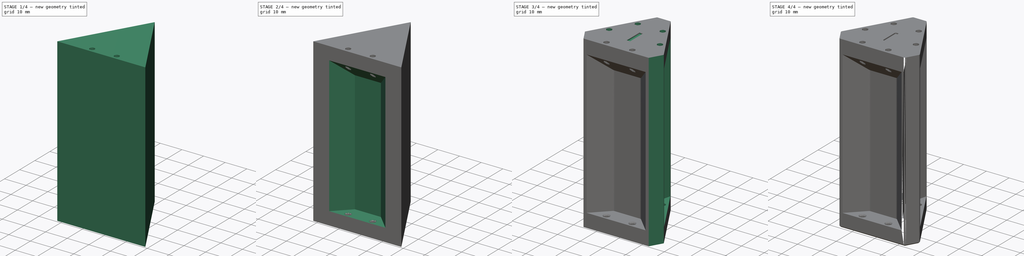
[diagram: build sequence overview — one tinted view per stage of 4, left to right]
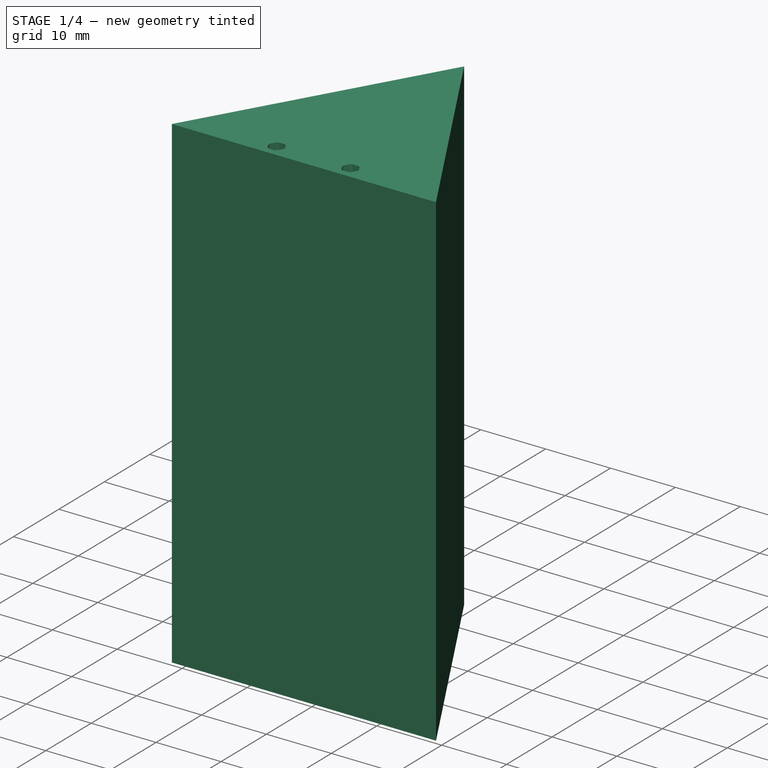
[diagram: stage 1 of 4 — iso view after this stage's code; geometry added in this stage tinted green]
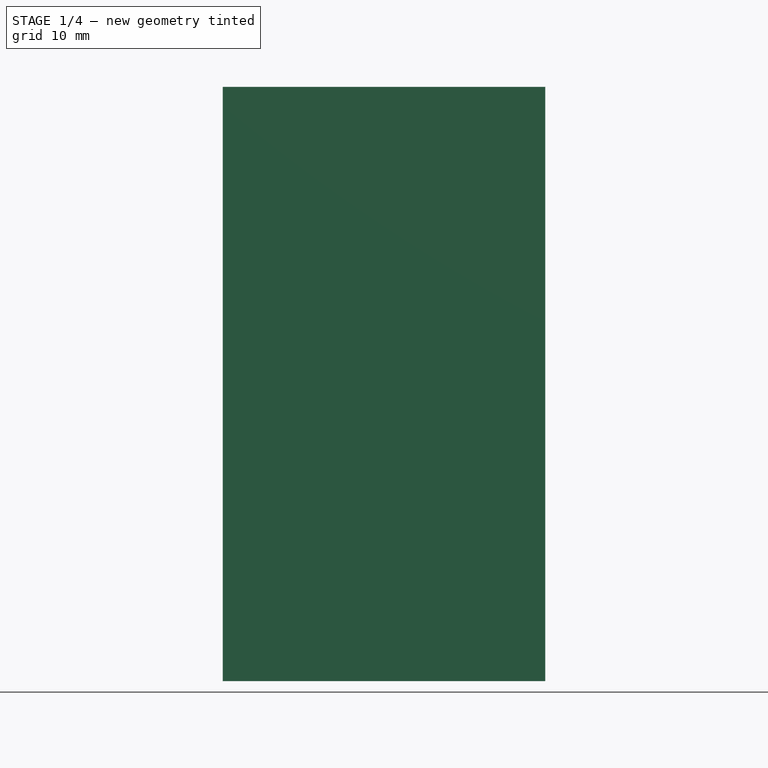
[diagram: stage 1 of 4 — front view after this stage's code; geometry added in this stage tinted green]
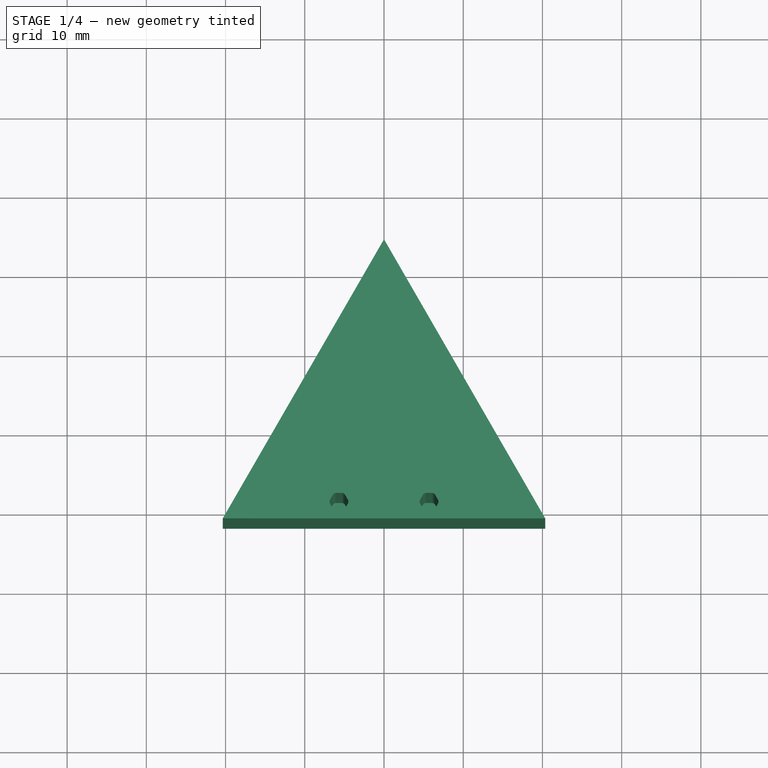
[diagram: stage 1 of 4 — top view after this stage's code; geometry added in this stage tinted green]
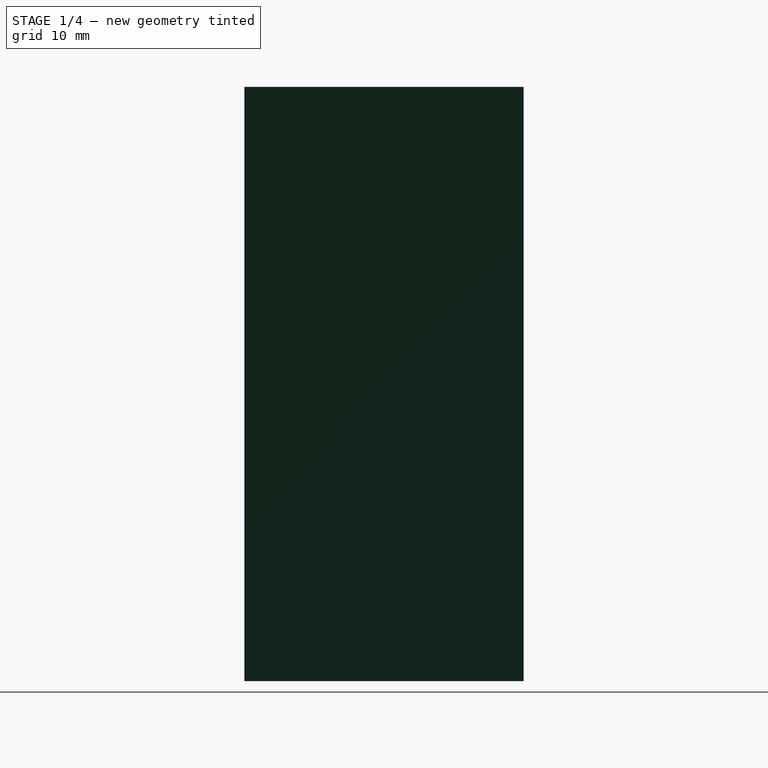
[diagram: stage 1 of 4 — right view after this stage's code; geometry added in this stage tinted green]
FCSTD DOCUMENT  (FreeCAD 1.1R41365 (Git))
Label: RodGrindingJig_A
License: All rights reserved
LicenseURL: https://en.wikipedia.org/wiki/All_rights_reserved
objects: Sketcher::SketchObject×5, PartDesign::Pocket×4, PartDesign::Fillet×4, PartDesign::Chamfer×3, App::Point×1, PartDesign::Pad×1, PartDesign::PolarPattern×1, PartDesign::Body×1
note: 49 computed .brp shape members not serialized (recipe doc carries the construction recipe); baked Part::Feature solids carry a one-line shape summary decoded from their .brp

FEATURE [App::Point] Origin001
  Role = Origin
FEATURE [Sketcher::SketchObject] Sketch
  ArcFitTolerance = 1e-06
  AttachmentSupport = -> [Origin]
  ExternalTypes = [0]
  FullyConstrained = true
  MakeInternals = false
  MapMode = 5
  sketch-geometry (4):
    g0: LineSegment StartX=0 StartY=23.5 StartZ=0 EndX=-20.3516 EndY=-11.75 EndZ=0
    g1: LineSegment StartX=-20.3516 StartY=-11.75 StartZ=0 EndX=20.3516 EndY=-11.75 EndZ=0
    g2: LineSegment StartX=20.3516 StartY=-11.75 StartZ=0 EndX=0 EndY=23.5 EndZ=0
    g3: Circle [constr] CenterX=0 CenterY=0 CenterZ=0 NormalX=0 NormalY=0 NormalZ=1 AngleXU=0 Radius=23.5
  constraints (11):
    c: Coincident(g0,g1)
    c: Coincident(g1,g2)
    c: Coincident(g2,g0)
    c: Equal(g0,g1)
    c: Equal(g0,g2)
    c: PointOnObject(g0,g3)
    c: PointOnObject(g1,g3)
    c: PointOnObject(g2,g3)
    c: Coincident(g3,g-1)
    c: PointOnObject(g2,g-2)
    c: Diameter(g3) = 47
FEATURE [PartDesign::Pad] Pad
  Direction = (0,0,1)
  Length = 75
  Length2 = 10
  Midplane = true
  Profile = -> Sketch
  ReferenceAxis = -> Sketch [N_Axis]
  Refine = true
  Suppressed = false
  Type = 0
FEATURE [Sketcher::SketchObject] Sketch003
  ArcFitTolerance = 1e-06
  AttachmentSupport = -> [Pad]
  ExternalTypes = [0,0]
  FullyConstrained = false
  MakeInternals = false
  MapMode = 5
  Placement = pos=(0,0,37.5) rot=(0,0,1;0rad)
  sketch-geometry (17):
    g0: LineSegment StartX=-5.05278 StartY=-10.7278 StartZ=0 EndX=-4.41769 EndY=-9.62778 EndZ=0
    g1: LineSegment StartX=-4.41769 StartY=-9.62778 StartZ=0 EndX=-5.05278 EndY=-8.52778 EndZ=0
    g2: LineSegment StartX=-5.05278 StartY=-8.52778 StartZ=0 EndX=-6.32295 EndY=-8.52778 EndZ=0
    g3: LineSegment StartX=-6.32295 StartY=-8.52778 StartZ=0 EndX=-6.95803 EndY=-9.62778 EndZ=0
    g4: LineSegment StartX=-6.95803 StartY=-9.62778 StartZ=0 EndX=-6.32295 EndY=-10.7278 EndZ=0
    g5: LineSegment StartX=-6.32295 StartY=-10.7278 StartZ=0 EndX=-5.05278 EndY=-10.7278 EndZ=0
    g6: Circle [constr] CenterX=-5.68786 CenterY=-9.62778 CenterZ=0 NormalX=0 NormalY=0 NormalZ=1 AngleXU=0 Radius=1.27017
    g7: LineSegment StartX=6.95803 StartY=-9.62778 StartZ=0 EndX=6.32295 EndY=-8.52778 EndZ=0
    g8: LineSegment StartX=6.32295 StartY=-8.52778 StartZ=0 EndX=5.05278 EndY=-8.52778 EndZ=0
    g9: LineSegment StartX=5.05278 StartY=-8.52778 StartZ=0 EndX=4.41769 EndY=-9.62778 EndZ=0
    g10: LineSegment StartX=4.41769 StartY=-9.62778 StartZ=0 EndX=5.05278 EndY=-10.7278 EndZ=0
    g11: LineSegment StartX=5.05278 StartY=-10.7278 StartZ=0 EndX=6.32295 EndY=-10.7278 EndZ=0
    g12: LineSegment StartX=6.32295 StartY=-10.7278 StartZ=0 EndX=6.95803 EndY=-9.62778 EndZ=0
    g13: Circle [constr] CenterX=5.68786 CenterY=-9.62778 CenterZ=0 NormalX=0 NormalY=0 NormalZ=1 AngleXU=0 Radius=1.27017
    g14: LineSegment [constr] StartX=-5.68786 StartY=-9.62778 StartZ=0 EndX=5.68786 EndY=-9.62778 EndZ=0
    g15: GeomPoint [constr] X=-9.8997e-12 Y=-9.62778 Z=0
    g16: LineSegment [constr] StartX=-1.8581e-12 StartY=-7.50555 StartZ=0 EndX=-1.7943e-11 EndY=-11.75 EndZ=0
  constraints (37):
    c: Coincident(g0,g1)
    c: Coincident(g1,g2)
    c: Coincident(g2,g3)
    c: Coincident(g3,g4)
    c: Coincident(g4,g5)
    c: Coincident(g5,g0)
    c: Equal(g0, g1-g5) x5
    c: PointOnObject(g0,g6)
    c: PointOnObject(g1,g6)
    c: PointOnObject(g2,g6)
    c: PointOnObject(g3,g6)
    c: PointOnObject(g4,g6)
    c: PointOnObject(g5,g6)
    c: Coincident(g7,g8)
    c: Coincident(g8,g9)
    c: Coincident(g9,g10)
    c: Coincident(g10,g11)
    c: Coincident(g11,g12)
    c: Coincident(g12,g7)
    c: Equal(g7, g8-g12) x5
    c: PointOnObject(g7,g13)
    c: PointOnObject(g8,g13)
    c: PointOnObject(g9,g13)
    c: PointOnObject(g10,g13)
    c: PointOnObject(g11,g13)
    c: PointOnObject(g12,g13)
    c: Coincident(g14,g6)
    c: Coincident(g14,g13)
    c: Horizontal(g14)
    c: Symmetric(g14,g14,g15)
    c: Horizontal(g2)
    c: Horizontal(g8)
    c: Equal(g6,g13)
    c: Distance(g5,g2) = 2.2
    c: Symmetric(g-3,g-3,g16)
    c: Symmetric(g-4,g-4,g16)
    c: Symmetric(g16,g16,g15)
FEATURE [PartDesign::Pocket] Pocket002  label="Hole_Rod"
  BaseFeature = -> Pad
  Direction = (0,0,-1)
  Length = 72.75
  Length2 = 5
  Profile = -> Sketch003
  ReferenceAxis = -> Sketch003 [N_Axis]
  Refine = true
  Suppressed = false
  Type = 0
FEATURE [PartDesign::Fillet] Fillet
  Base = -> Pocket002 [Edge39,Edge37,Edge25,Edge23,Edge22,Edge31,Edge35,Edge34,Edge41,Edge43,Edge27,Edge29]
  BaseFeature = -> Pocket002
  Radius = 0.5
  Refine = true
  SupportTransform = false
  Suppressed = false
  UseAllEdges = false
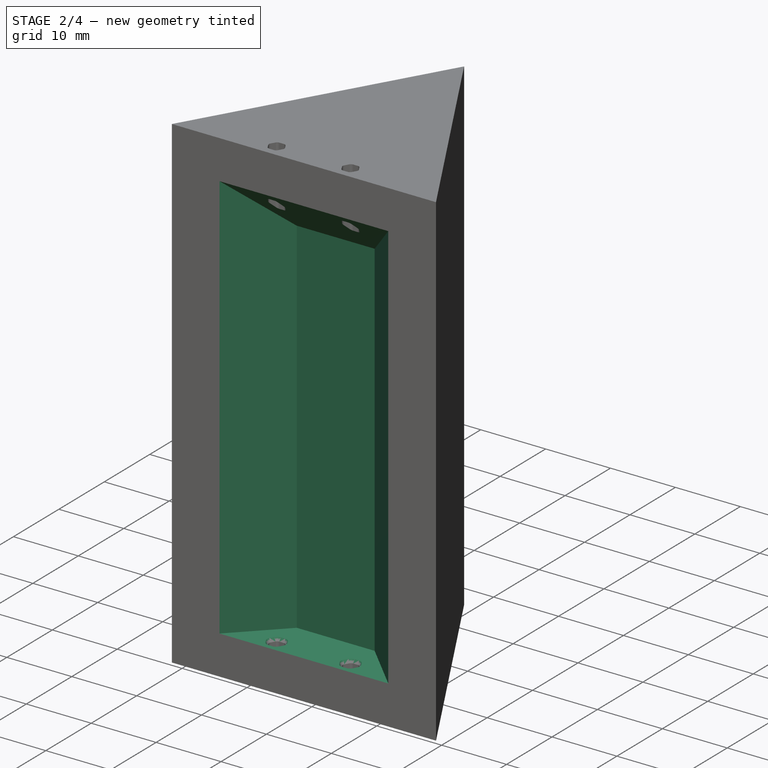
[diagram: stage 2 of 4 — iso view after this stage's code; geometry added in this stage tinted green]
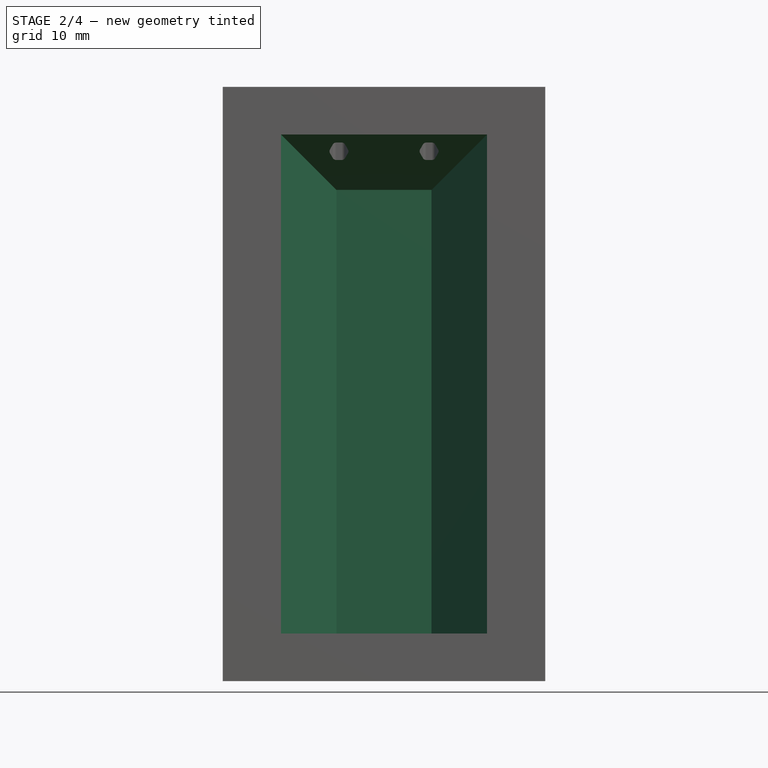
[diagram: stage 2 of 4 — front view after this stage's code; geometry added in this stage tinted green]
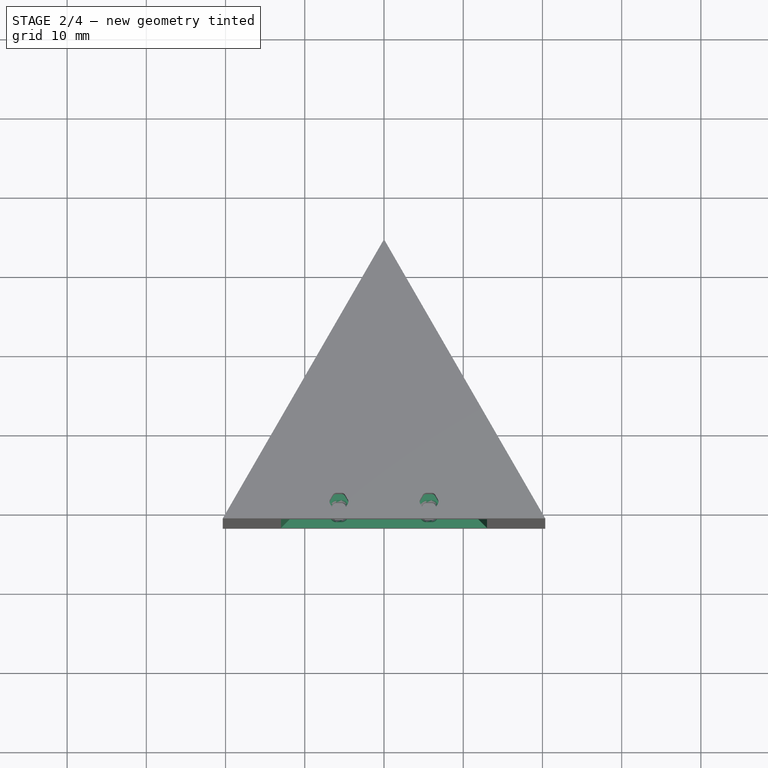
[diagram: stage 2 of 4 — top view after this stage's code; geometry added in this stage tinted green]
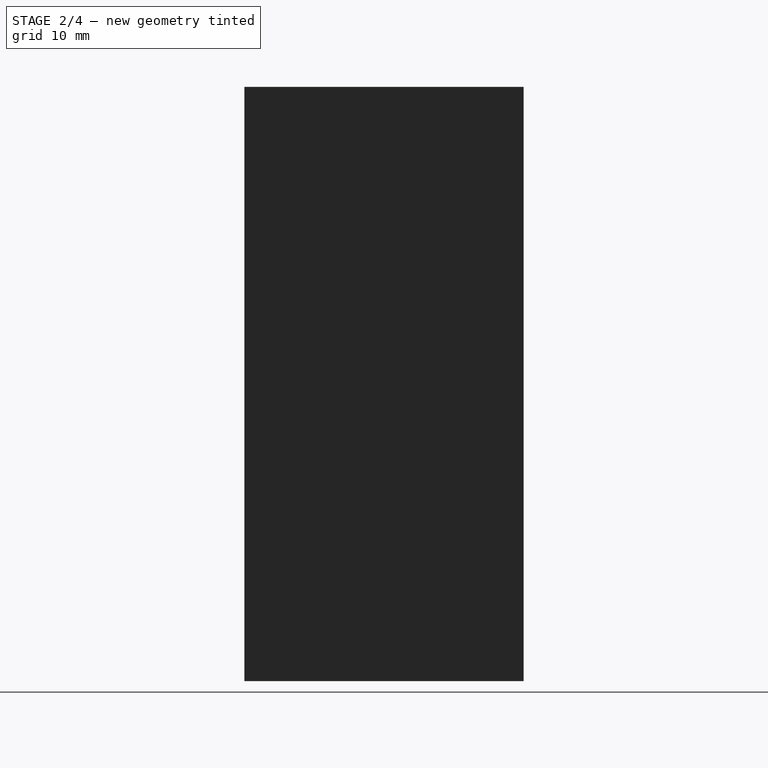
[diagram: stage 2 of 4 — right view after this stage's code; geometry added in this stage tinted green]
FEATURE [Sketcher::SketchObject] Sketch005
  ArcFitTolerance = 1e-06
  AttachmentSupport = -> [Fillet]
  ExternalGeometry = -> [Fillet]
  ExternalTypes = [0,0]
  FullyConstrained = true
  MakeInternals = false
  MapMode = 5
  Placement = pos=(-1.7941e-11,-11.75,0) rot=(1,0,0;1.5708rad)
  sketch-geometry (5):
    g0: LineSegment StartX=-13 StartY=-31.5 StartZ=0 EndX=13 EndY=-31.5 EndZ=0
    g1: LineSegment StartX=13 StartY=-31.5 StartZ=0 EndX=13 EndY=31.5 EndZ=0
    g2: LineSegment StartX=13 StartY=31.5 StartZ=0 EndX=-13 EndY=31.5 EndZ=0
    g3: LineSegment StartX=-13 StartY=31.5 StartZ=0 EndX=-13 EndY=-31.5 EndZ=0
    g4: GeomPoint [constr] X=0 Y=-2.9e-15 Z=0
  constraints (13):
    c: Coincident(g0,g1)
    c: Coincident(g1,g2)
    c: Coincident(g2,g3)
    c: Coincident(g3,g0)
    c: Horizontal(g0)
    c: Horizontal(g2)
    c: Vertical(g1)
    c: Vertical(g3)
    c: Symmetric(g2,g0,g4)
    c: PointOnObject(g4,g-2)
    c: Distance(g0,g0) = 26
    c: Distance(g-4,g0) = 6
    c: Distance(g-3,g2) = 6
FEATURE [PartDesign::Pocket] Pocket
  BaseFeature = -> Fillet
  Direction = (1.5269e-12,1,-2e-16)
  Length = 7
  Length2 = 5
  Profile = -> Sketch005
  ReferenceAxis = -> Sketch005 [N_Axis]
  Refine = true
  Suppressed = false
  TaperAngle = -45
  Type = 0
FEATURE [Sketcher::SketchObject] Sketch006
  ArcFitTolerance = 1e-06
  AttachmentSupport = -> [Origin]
  ExternalGeometry = -> [Pocket]
  ExternalTypes = [0,0,0,0]
  FullyConstrained = true
  MakeInternals = false
  MapMode = 5
FEATURE [PartDesign::Pocket] Pocket003
  BaseFeature = -> Pocket
  Direction = (0,0,-1)
  Length = 31.5
  Length2 = 5
  Profile = -> Sketch006
  ReferenceAxis = -> Sketch006 [N_Axis]
  Refine = true
  Suppressed = false
  Type = 0
FEATURE [PartDesign::Chamfer] Chamfer001
  Angle = 30
  Base = -> Pocket003 [Edge106,Edge104]
  BaseFeature = -> Pocket003
  ChamferType = 2
  FlipDirection = true
  Refine = true
  Size = 0.5
  Size2 = 1
  SupportTransform = false
  Suppressed = false
  UseAllEdges = false
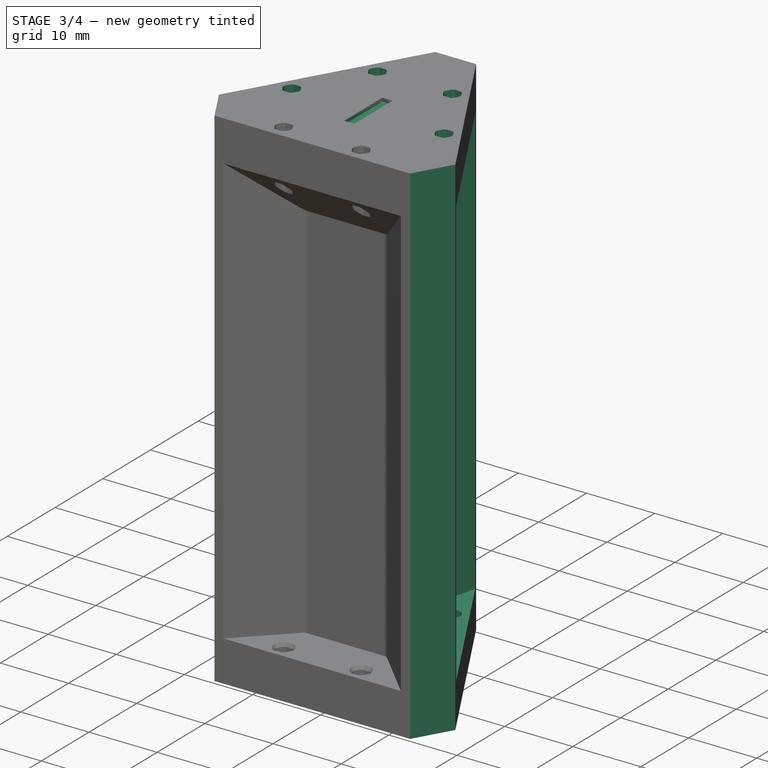
[diagram: stage 3 of 4 — iso view after this stage's code; geometry added in this stage tinted green]
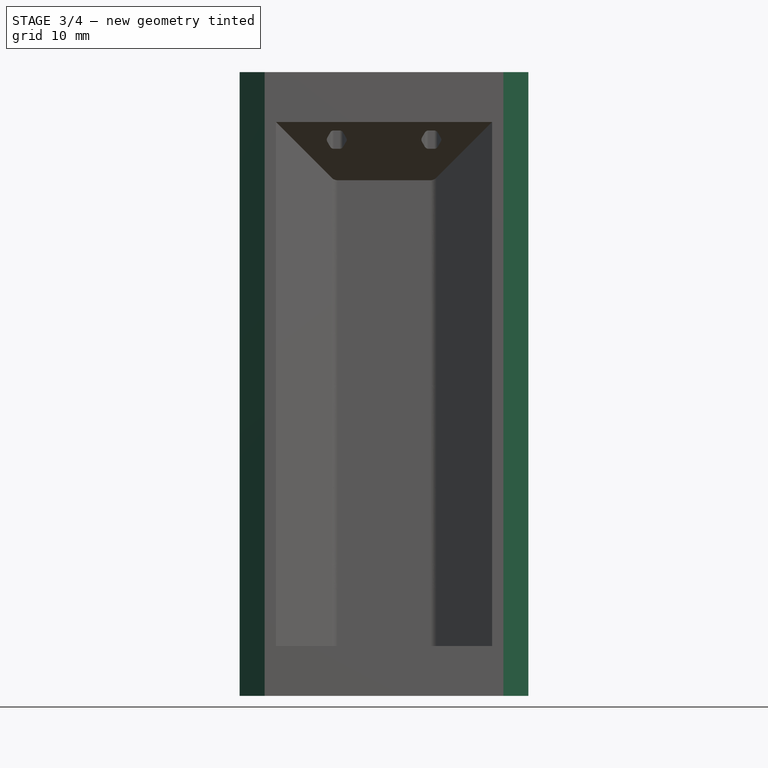
[diagram: stage 3 of 4 — front view after this stage's code; geometry added in this stage tinted green]
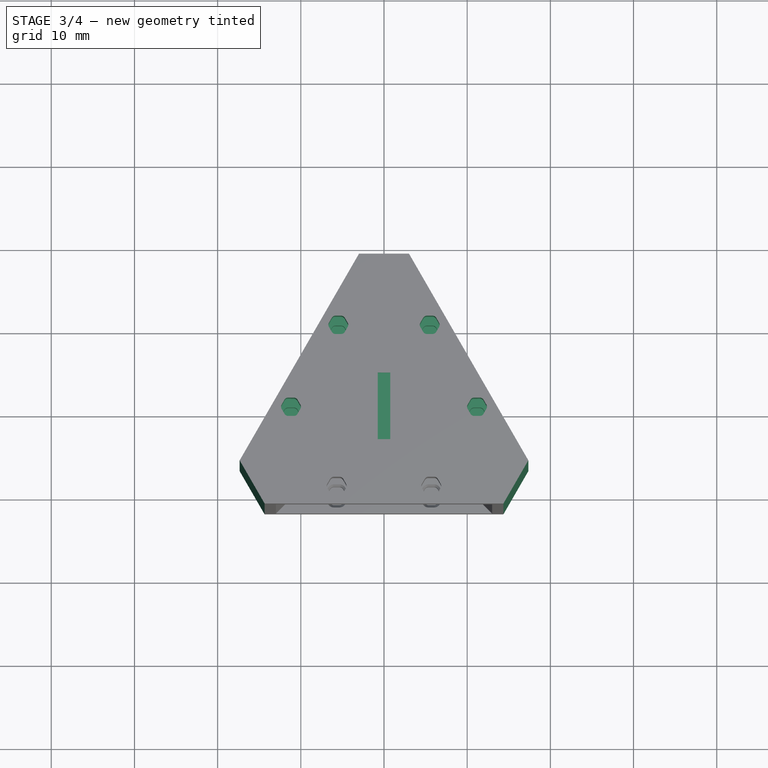
[diagram: stage 3 of 4 — top view after this stage's code; geometry added in this stage tinted green]
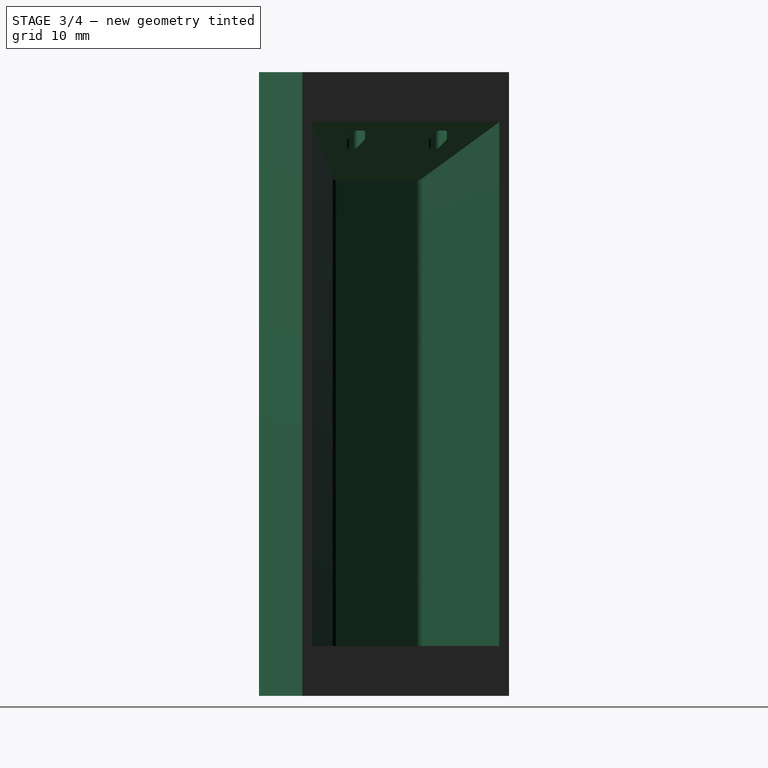
[diagram: stage 3 of 4 — right view after this stage's code; geometry added in this stage tinted green]
FEATURE [PartDesign::PolarPattern] PolarPattern
  Angle = 360
  Axis = -> Z_Axis
  BaseFeature = -> Chamfer001
  Mode = 0
  Occurrences = 3
  Offset = 120
  Originals = -> [Pocket002,Fillet,Pocket,Pocket003]
  Refine = true
  Suppressed = false
  TransformMode = 0
FEATURE [PartDesign::Chamfer] Chamfer
  Angle = 45
  Base = -> PolarPattern [Edge60,Edge142,Edge63]
  BaseFeature = -> PolarPattern
  ChamferType = 0
  FlipDirection = false
  Refine = true
  Size = 6
  Size2 = 1
  SupportTransform = false
  Suppressed = false
  UseAllEdges = false
FEATURE [PartDesign::Fillet] Fillet001
  Base = -> Chamfer [Edge95,Edge124,Edge340,Edge336,Edge374,Edge370]
  BaseFeature = -> Chamfer
  Radius = 1
  Refine = true
  SupportTransform = false
  Suppressed = false
  UseAllEdges = false
FEATURE [Sketcher::SketchObject] Sketch007
  ArcFitTolerance = 1e-06
  AttachmentSupport = -> [Fillet001]
  ExternalTypes = [0]
  FullyConstrained = true
  MakeInternals = false
  MapMode = 5
  Placement = pos=(0,0,37.5) rot=(0,0,1;0rad)
  sketch-geometry (5):
    g0: LineSegment StartX=-0.75 StartY=-4 StartZ=0 EndX=0.75 EndY=-4 EndZ=0
    g1: LineSegment StartX=0.75 StartY=-4 StartZ=0 EndX=0.75 EndY=4 EndZ=0
    g2: LineSegment StartX=0.75 StartY=4 StartZ=0 EndX=-0.75 EndY=4 EndZ=0
    g3: LineSegment StartX=-0.75 StartY=4 StartZ=0 EndX=-0.75 EndY=-4 EndZ=0
    g4: GeomPoint [constr] X=0 Y=0 Z=0
  constraints (12):
    c: Coincident(g0,g1)
    c: Coincident(g1,g2)
    c: Coincident(g2,g3)
    c: Coincident(g3,g0)
    c: Horizontal(g0)
    c: Horizontal(g2)
    c: Vertical(g1)
    c: Vertical(g3)
    c: Symmetric(g2,g0,g4)
    c: Coincident(g4,g-1)
    c: Distance(g0,g0) = 1.5
    c: DistanceY(g1,g1) = 8
FEATURE [PartDesign::Pocket] Pocket004
  BaseFeature = -> Fillet001
  Direction = (0,0,-1)
  Length = 0.5
  Length2 = 5
  Profile = -> Sketch007
  ReferenceAxis = -> Sketch007 [N_Axis]
  Refine = true
  Suppressed = false
  Type = 0
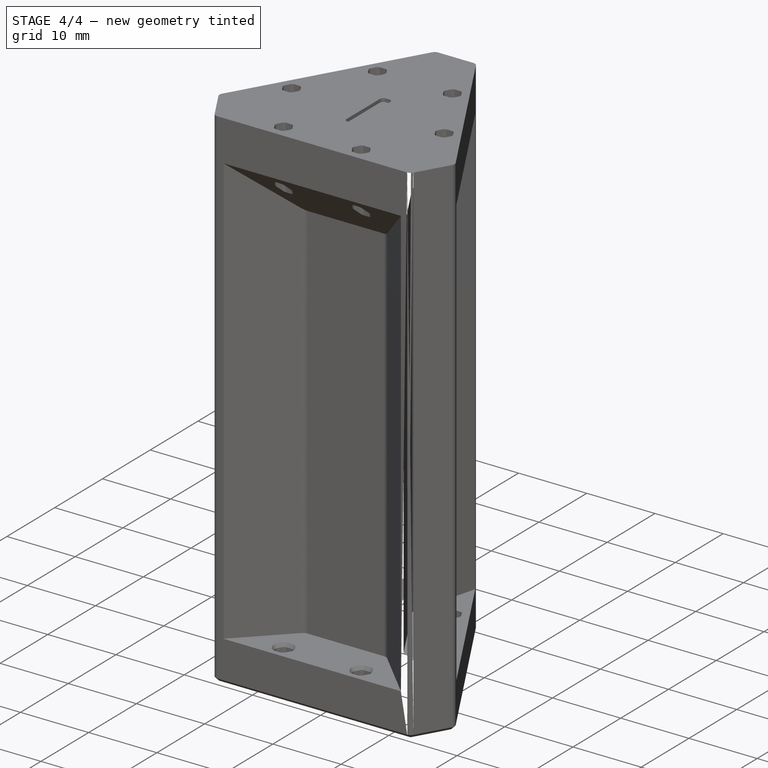
[diagram: stage 4 of 4 — iso view after this stage's code; geometry added in this stage tinted green]
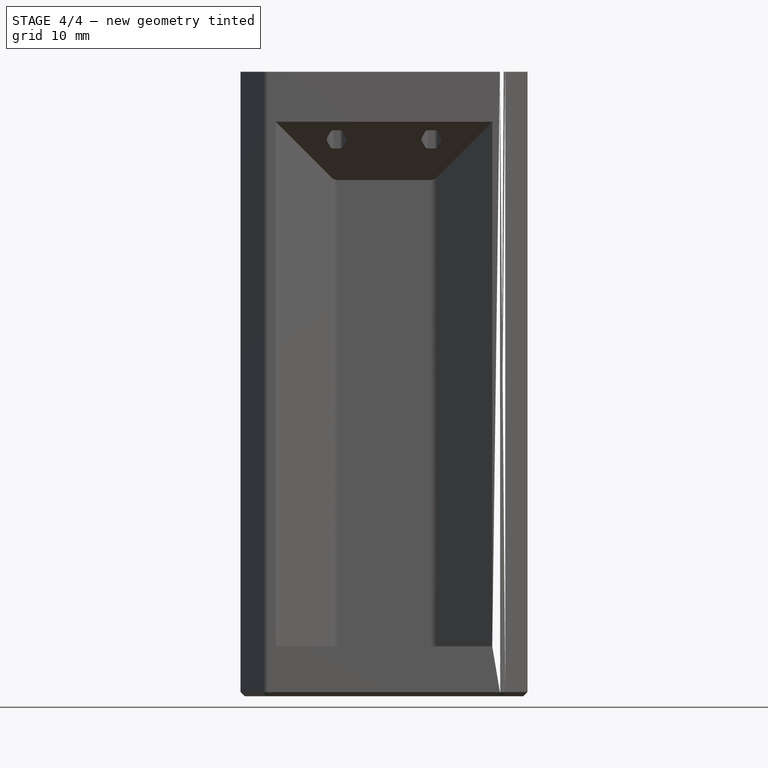
[diagram: stage 4 of 4 — front view after this stage's code; geometry added in this stage tinted green]
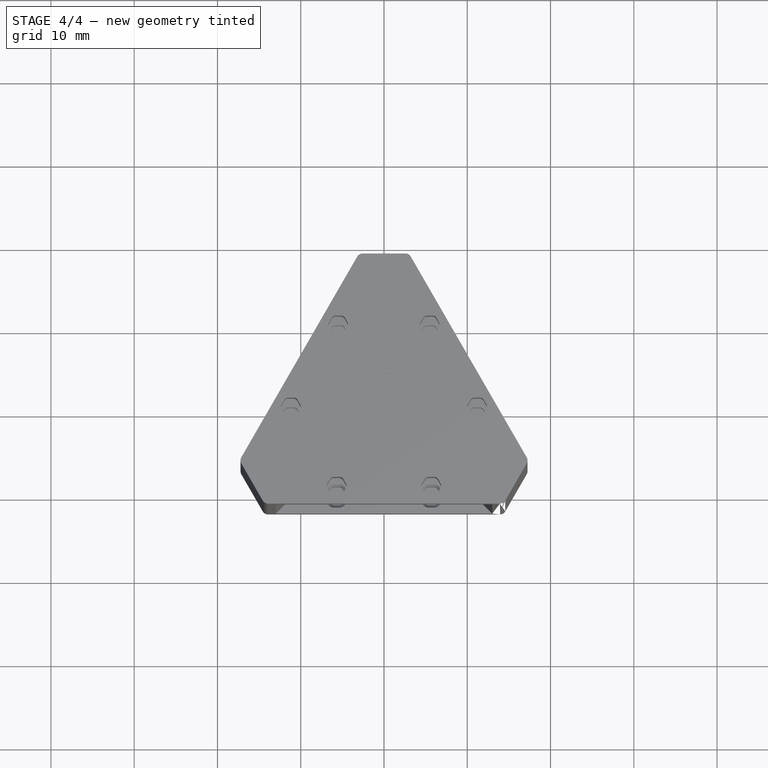
[diagram: stage 4 of 4 — top view after this stage's code; geometry added in this stage tinted green]
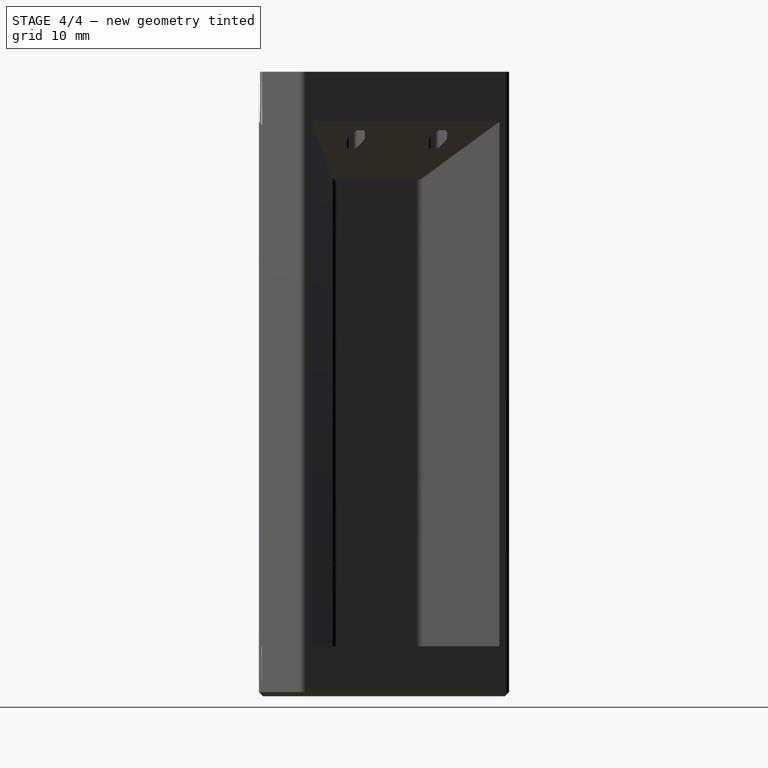
[diagram: stage 4 of 4 — right view after this stage's code; geometry added in this stage tinted green]
FEATURE [PartDesign::Fillet] Fillet002
  Base = -> Pocket004 [Edge228,Edge227,Edge232,Edge230]
  BaseFeature = -> Pocket004
  Radius = 0.5
  Refine = true
  SupportTransform = false
  Suppressed = false
  UseAllEdges = false
FEATURE [PartDesign::Fillet] Fillet003
  Base = -> Fillet002 [Edge111,Edge104,Edge105,Edge113,Edge121,Edge115]
  BaseFeature = -> Fillet002
  Radius = 0.75
  Refine = true
  SupportTransform = false
  Suppressed = false
  UseAllEdges = false
FEATURE [PartDesign::Chamfer] Chamfer002
  Angle = 45
  Base = -> Fillet003 [Edge112]
  BaseFeature = -> Fillet003
  ChamferType = 0
  FlipDirection = false
  Refine = true
  Size = 0.5
  Size2 = 1
  SupportTransform = false
  Suppressed = false
  UseAllEdges = false
FEATURE [PartDesign::Body] Body  label="RodGrindingJigA"
  AllowCompound = false
  Group = -> [Sketch,Pad,Sketch003,Pocket002,Fillet,Sketch005,Pocket,Sketch006,Pocket003,Chamfer001,PolarPattern,Chamfer,Fillet001,Sketch007,Pocket004,Fillet002,Fillet003,Chamfer002]
  Origin = -> Origin
  Tip = -> Chamfer002
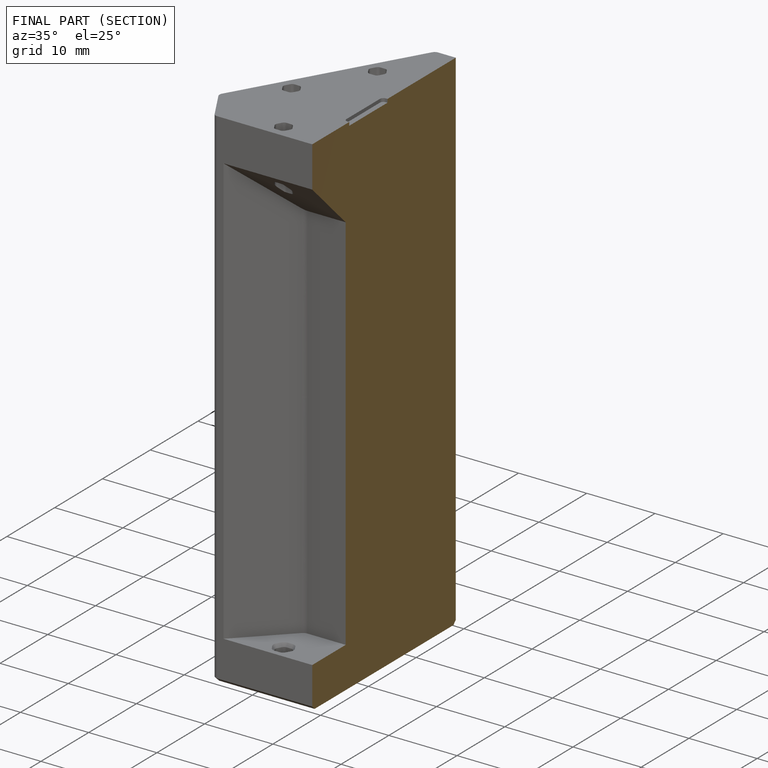
[diagram: finished part — half-section view (interior)]
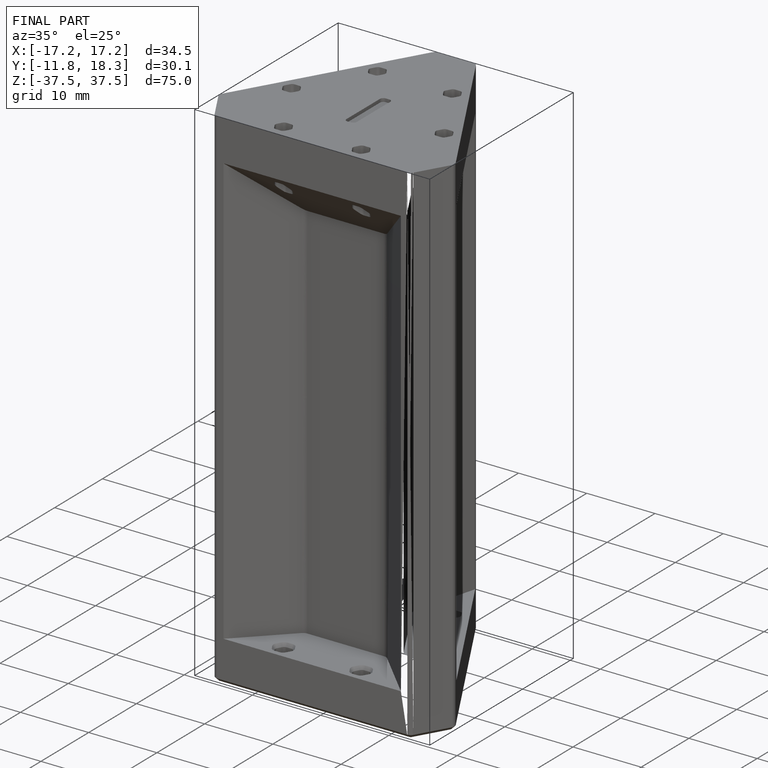
[diagram: finished part — iso view with bounding-box wireframe]
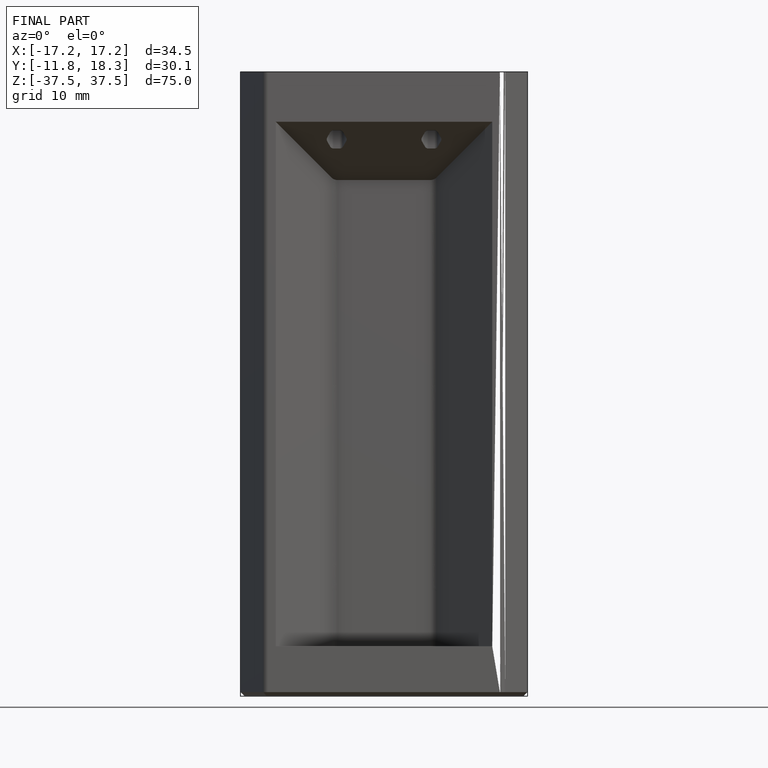
[diagram: finished part — front view with bounding-box wireframe]
